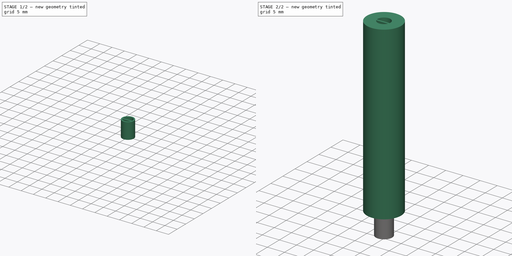
[diagram: build sequence overview — one tinted view per stage of 2, left to right]
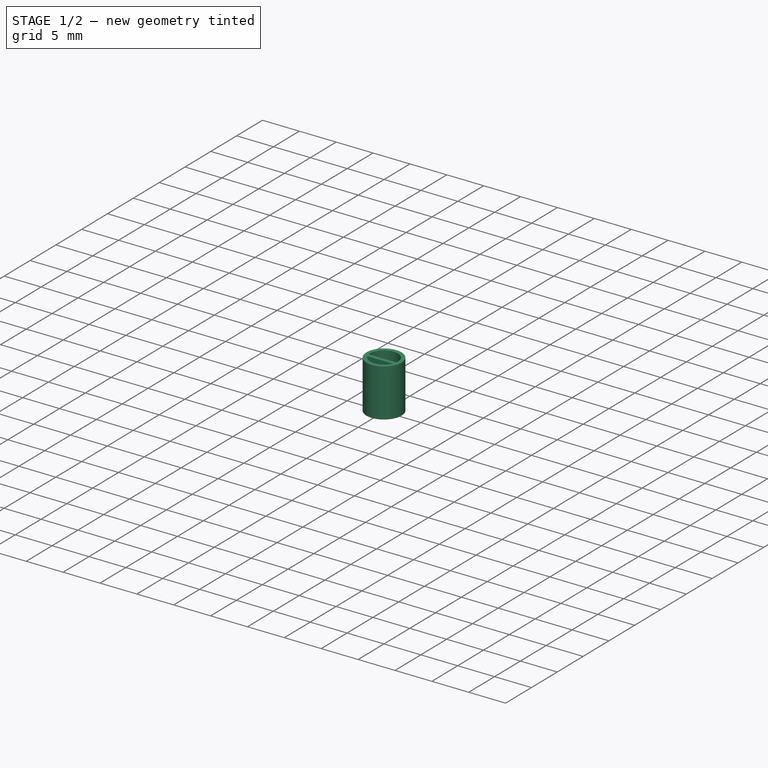
[diagram: stage 1 of 2 — iso view after this stage's code; geometry added in this stage tinted green]
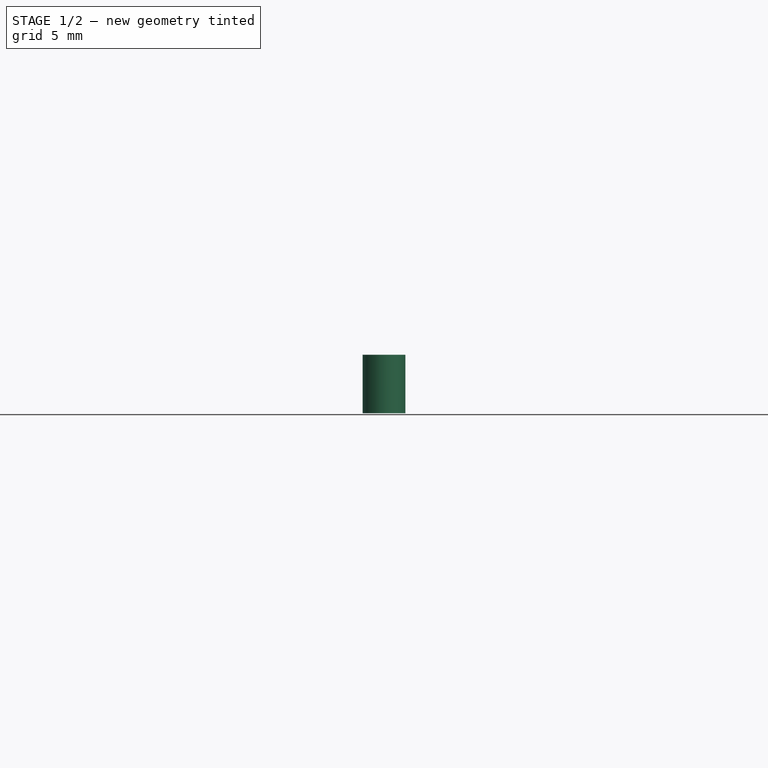
[diagram: stage 1 of 2 — front view after this stage's code; geometry added in this stage tinted green]
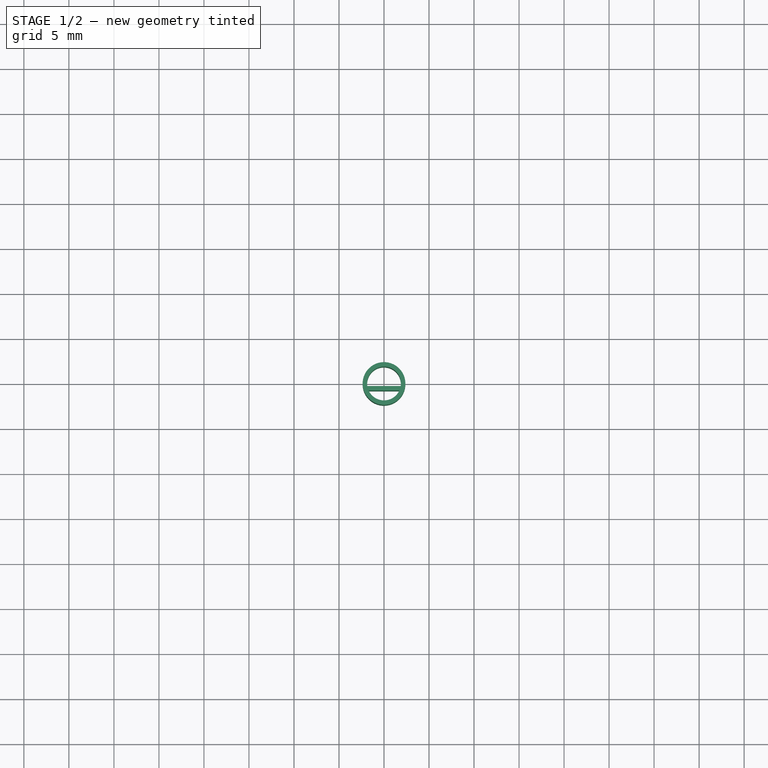
[diagram: stage 1 of 2 — top view after this stage's code; geometry added in this stage tinted green]
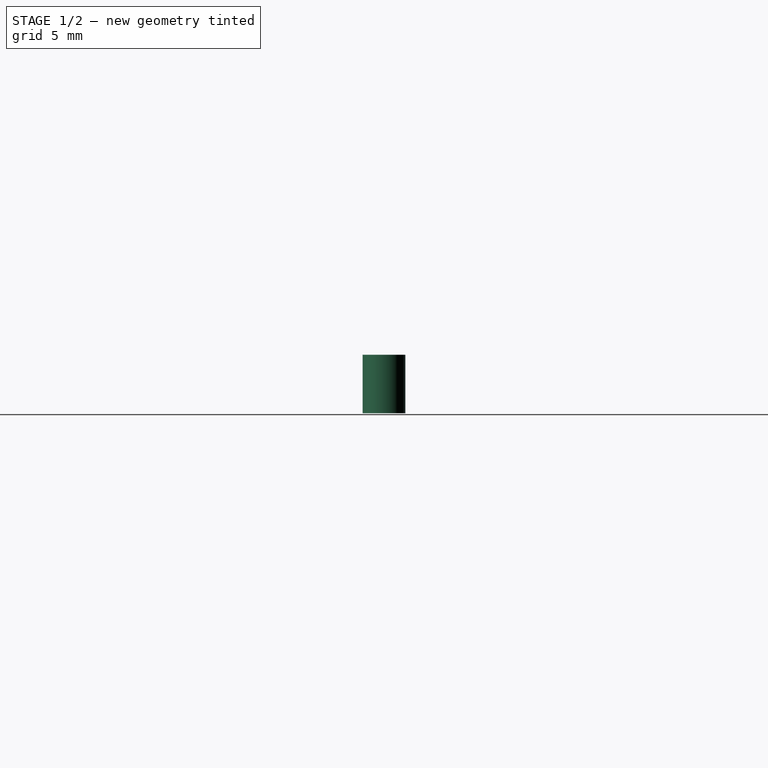
[diagram: stage 1 of 2 — right view after this stage's code; geometry added in this stage tinted green]
FCSTD DOCUMENT  (FreeCAD 0.18R)
Label: wirewrap_huge
License: All rights reserved
LicenseURL: http://en.wikipedia.org/wiki/All_rights_reserved
objects: Sketcher::SketchObject×2, Part::Extrusion×2
note: 4 computed .brp shape members not serialized (recipe doc carries the construction recipe); baked Part::Feature solids carry a one-line shape summary decoded from their .brp

FEATURE [Sketcher::SketchObject] Sketch010  label="Sketch002"
  sketch-geometry (15):
    g0: LineSegment [constr] StartX=0 StartY=0 StartZ=0 EndX=10 EndY=0 EndZ=0
    g1: LineSegment [constr] StartX=10 StartY=0 StartZ=0 EndX=10 EndY=10 EndZ=0
    g2: LineSegment [constr] StartX=10 StartY=10 StartZ=0 EndX=0 EndY=10 EndZ=0
    g3: LineSegment [constr] StartX=0 StartY=10 StartZ=0 EndX=0 EndY=0 EndZ=0
    g4: LineSegment [constr] StartX=5 StartY=10 StartZ=0 EndX=5 EndY=0 EndZ=0
    g5: Circle [constr] CenterX=5 CenterY=5 CenterZ=0 NormalX=0 NormalY=0 NormalZ=1 AngleXU=0 Radius=1.875
    g6: Circle CenterX=5 CenterY=5 CenterZ=0 NormalX=0 NormalY=0 NormalZ=1 AngleXU=0 Radius=2.375
    g7: LineSegment [constr] StartX=3.125 StartY=5 StartZ=0 EndX=6.875 EndY=5 EndZ=0
    g8: LineSegment [constr] StartX=2.625 StartY=5 StartZ=0 EndX=7.375 EndY=5 EndZ=0
    g9: GeomPoint X=5 Y=3.125 Z=0
    g10: LineSegment StartX=3.14528 StartY=4.725 StartZ=0 EndX=6.85472 EndY=4.725 EndZ=0
    g11: LineSegment StartX=3.29266 StartY=4.225 StartZ=0 EndX=6.70734 EndY=4.225 EndZ=0
    g12: ArcOfCircle CenterX=5 CenterY=5 CenterZ=0 NormalX=0 NormalY=0 NormalZ=1 AngleXU=0 Radius=1.875 StartAngle=6.13599 EndAngle=9.57198
    g13: ArcOfCircle CenterX=5 CenterY=5 CenterZ=0 NormalX=0 NormalY=0 NormalZ=1 AngleXU=0 Radius=1.875 StartAngle=3.5677 EndAngle=5.85707
    g14: Circle [constr] CenterX=5 CenterY=5 CenterZ=0 NormalX=0 NormalY=0 NormalZ=1 AngleXU=0 Radius=5
  constraints (40):
    c: Coincident(g0,g1)
    c: Coincident(g1,g2)
    c: Coincident(g2,g3)
    c: Coincident(g3,g0)
    c: Horizontal(g0)
    c: Horizontal(g2)
    c: Vertical(g1)
    c: Vertical(g3)
    c: Coincident(g0,g-1)
    c: DistanceX(g0,g0) = 10
    c: DistanceY(g1,g1) = 10
    c: PointOnObject(g4,g2)
    c: Symmetric(g0,g0,g4)
    c: Horizontal(g7)
    c: Symmetric(g7,g7,g5)
    c: PointOnObject(g8,g6)
    c: Horizontal(g8)
    c: Symmetric(g8,g8,g5)
    c: DistanceX(g8,g8) = 4.75
    c: Vertical(g4)
    c: PointOnObject(g9,g4)
    c: PointOnObject(g9,g5)
    c: DistanceX(g7,g8) = 0.5
    c: Symmetric(g4,g4,g6)
    c: PointOnObject(g10,g5)
    c: PointOnObject(g11,g5)
    c: Horizontal(g11)
    c: DistanceY(g11,g10) = 0.5
    c: DistanceY(g9,g11) = 1.1
    c: Coincident(g12,g6)
    c: Coincident(g12,g10)
    c: Coincident(g12,g10)
    c: Coincident(g5,g6)
    c: Horizontal(g10)
    c: Coincident(g13,g6)
    c: Coincident(g13,g11)
    c: Coincident(g13,g11)
    c: Coincident(g14,g6)
    c: Tangent(g14,g3)
    c: PointOnObject(g7,g12)
FEATURE [Part::Extrusion] Extrude003  label="Extrude002"
  Base = -> Sketch010
  Dir = (0,0,1)
  DirMode = 2
  FaceMakerClass = Part::FaceMakerBullseye
  LengthFwd = -6.5
  LengthRev = 0
  Solid = true
  Symmetric = false
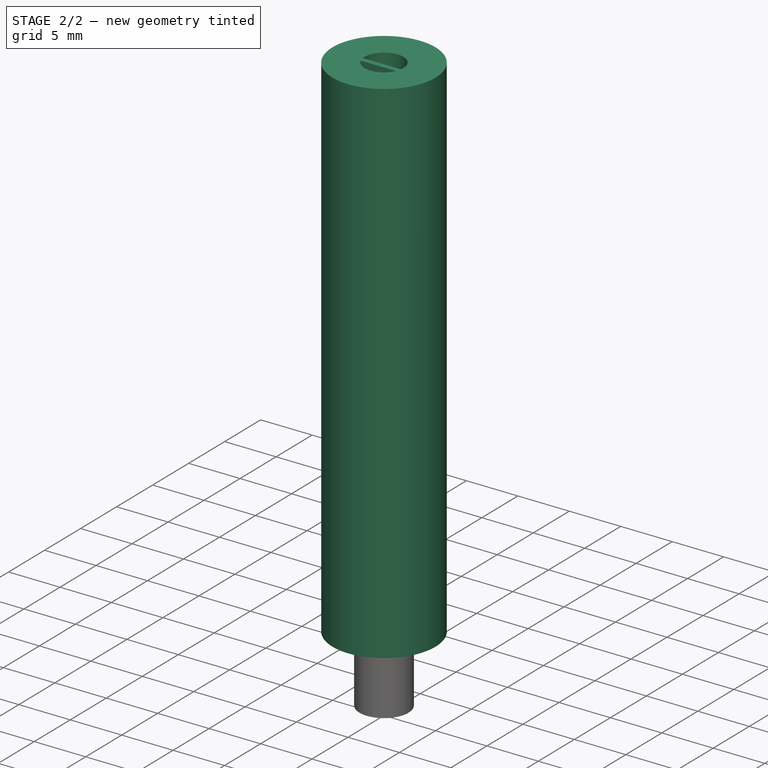
[diagram: stage 2 of 2 — iso view after this stage's code; geometry added in this stage tinted green]
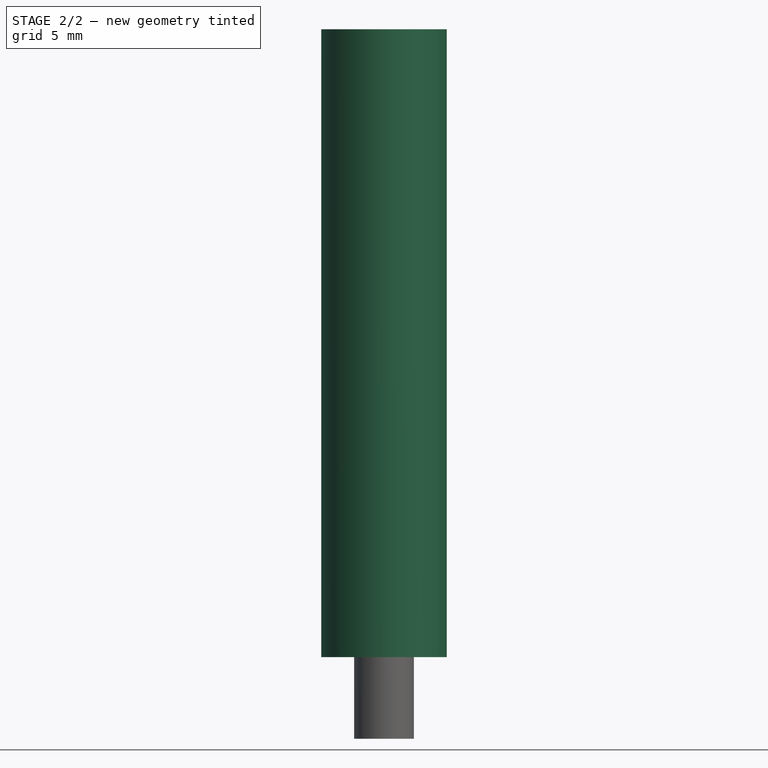
[diagram: stage 2 of 2 — front view after this stage's code; geometry added in this stage tinted green]
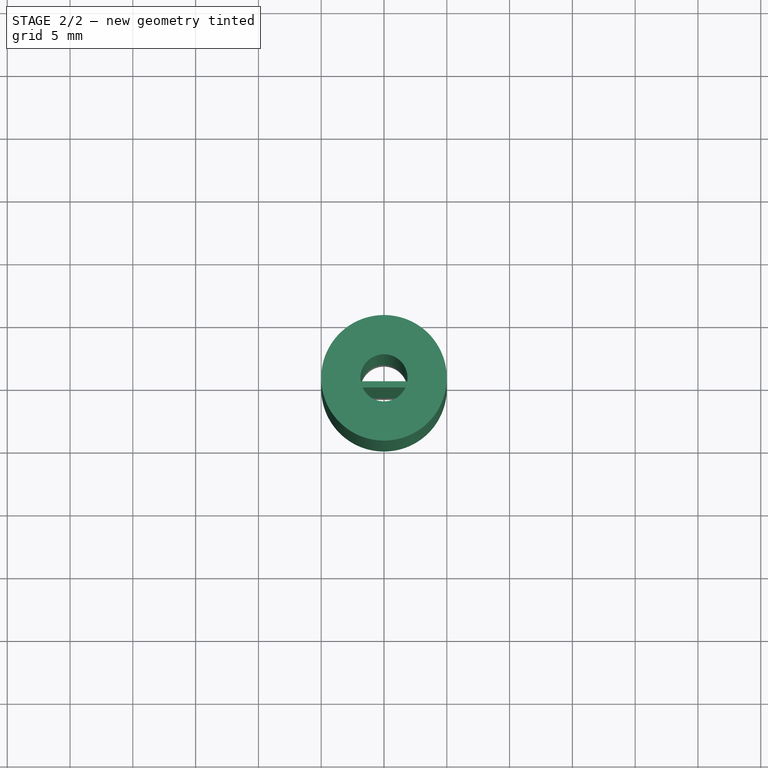
[diagram: stage 2 of 2 — top view after this stage's code; geometry added in this stage tinted green]
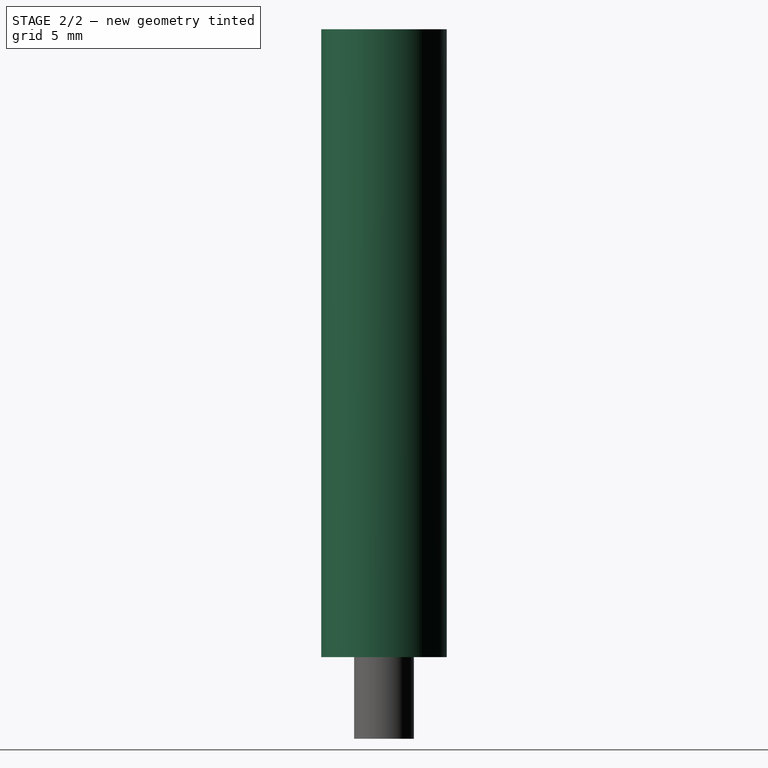
[diagram: stage 2 of 2 — right view after this stage's code; geometry added in this stage tinted green]
FEATURE [Sketcher::SketchObject] Sketch009  label="Sketch001"
  sketch-geometry (15):
    g0: LineSegment [constr] StartX=0 StartY=0 StartZ=0 EndX=10 EndY=0 EndZ=0
    g1: LineSegment [constr] StartX=10 StartY=0 StartZ=0 EndX=10 EndY=10 EndZ=0
    g2: LineSegment [constr] StartX=10 StartY=10 StartZ=0 EndX=0 EndY=10 EndZ=0
    g3: LineSegment [constr] StartX=0 StartY=10 StartZ=0 EndX=0 EndY=0 EndZ=0
    g4: LineSegment [constr] StartX=5 StartY=10 StartZ=0 EndX=5 EndY=0 EndZ=0
    g5: Circle [constr] CenterX=5 CenterY=5 CenterZ=0 NormalX=0 NormalY=0 NormalZ=1 AngleXU=0 Radius=1.875
    g6: Circle [constr] CenterX=5 CenterY=5 CenterZ=0 NormalX=0 NormalY=0 NormalZ=1 AngleXU=0 Radius=2.375
    g7: LineSegment [constr] StartX=3.125 StartY=5 StartZ=0 EndX=6.875 EndY=5 EndZ=0
    g8: LineSegment [constr] StartX=2.625 StartY=5 StartZ=0 EndX=7.375 EndY=5 EndZ=0
    g9: GeomPoint X=5 Y=3.125 Z=0
    g10: LineSegment StartX=3.14528 StartY=4.725 StartZ=0 EndX=6.85472 EndY=4.725 EndZ=0
    g11: LineSegment StartX=3.29266 StartY=4.225 StartZ=0 EndX=6.70734 EndY=4.225 EndZ=0
    g12: ArcOfCircle CenterX=5 CenterY=5 CenterZ=0 NormalX=0 NormalY=0 NormalZ=1 AngleXU=0 Radius=1.875 StartAngle=6.13599 EndAngle=9.57198
    g13: ArcOfCircle CenterX=5 CenterY=5 CenterZ=0 NormalX=0 NormalY=0 NormalZ=1 AngleXU=0 Radius=1.875 StartAngle=3.5677 EndAngle=5.85707
    g14: Circle CenterX=5 CenterY=5 CenterZ=0 NormalX=0 NormalY=0 NormalZ=1 AngleXU=0 Radius=5
  constraints (40):
    c: Coincident(g0,g1)
    c: Coincident(g1,g2)
    c: Coincident(g2,g3)
    c: Coincident(g3,g0)
    c: Horizontal(g0)
    c: Horizontal(g2)
    c: Vertical(g1)
    c: Vertical(g3)
    c: Coincident(g0,g-1)
    c: DistanceX(g0,g0) = 10
    c: DistanceY(g1,g1) = 10
    c: PointOnObject(g4,g2)
    c: Symmetric(g0,g0,g4)
    c: Horizontal(g7)
    c: Symmetric(g7,g7,g5)
    c: PointOnObject(g8,g6)
    c: Horizontal(g8)
    c: Symmetric(g8,g8,g5)
    c: DistanceX(g8,g8) = 4.75
    c: Vertical(g4)
    c: PointOnObject(g9,g4)
    c: PointOnObject(g9,g5)
    c: DistanceX(g7,g8) = 0.5
    c: Symmetric(g4,g4,g6)
    c: PointOnObject(g10,g5)
    c: PointOnObject(g11,g5)
    c: Horizontal(g11)
    c: DistanceY(g11,g10) = 0.5
    c: DistanceY(g9,g11) = 1.1
    c: Coincident(g12,g6)
    c: Coincident(g12,g10)
    c: Coincident(g12,g10)
    c: Coincident(g5,g6)
    c: Horizontal(g10)
    c: Coincident(g13,g6)
    c: Coincident(g13,g11)
    c: Coincident(g13,g11)
    c: Coincident(g14,g6)
    c: Tangent(g14,g3)
    c: PointOnObject(g7,g12)
FEATURE [Part::Extrusion] Extrude002  label="Extrude001"
  Base = -> Sketch009
  Dir = (0,0,1)
  DirMode = 2
  FaceMakerClass = Part::FaceMakerBullseye
  LengthFwd = 50
  LengthRev = 0
  Solid = true
  Symmetric = false
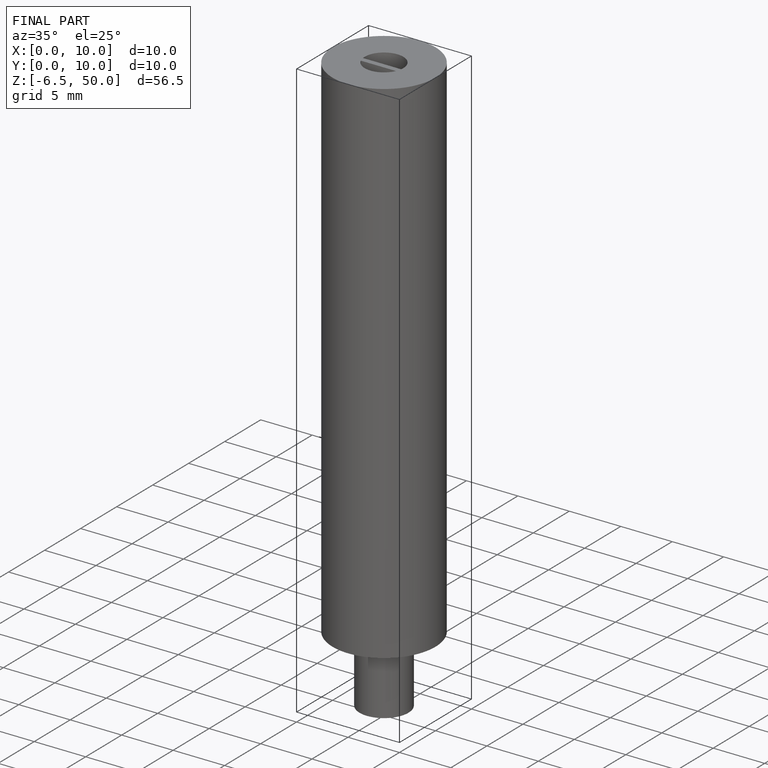
[diagram: finished part — iso view with bounding-box wireframe]
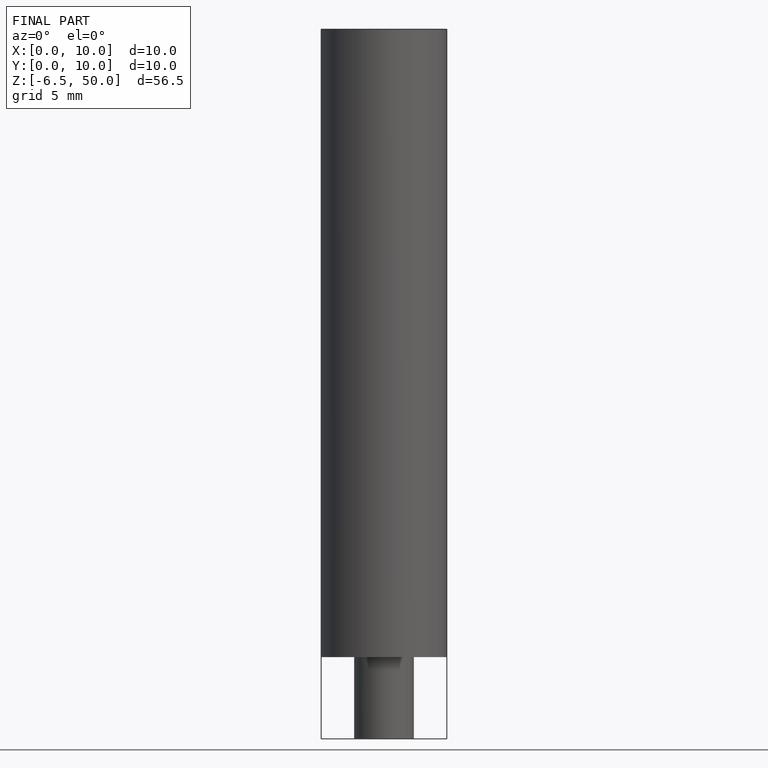
[diagram: finished part — front view with bounding-box wireframe]
